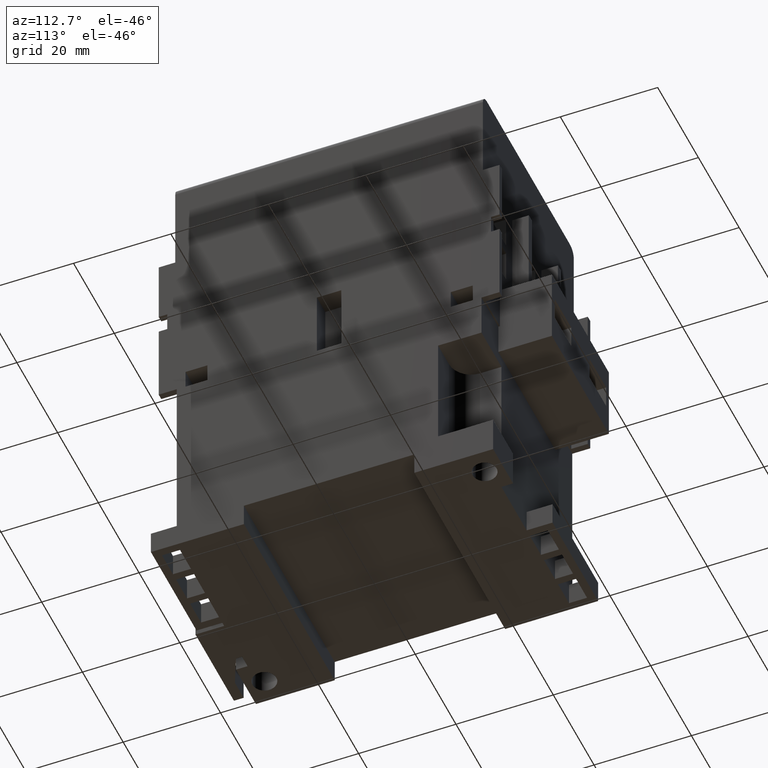
[diagram: clean part render]
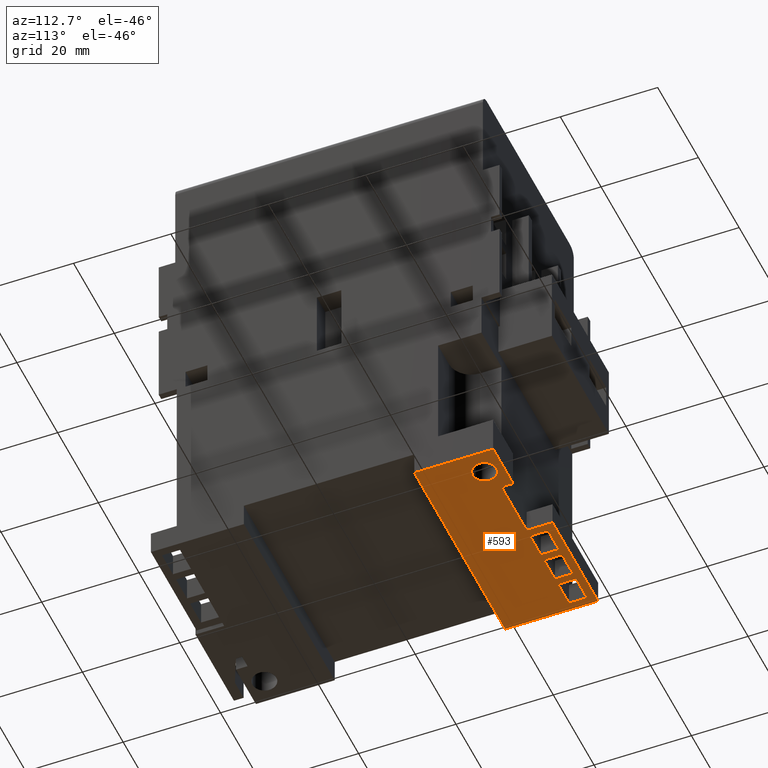
[diagram: same view with one face highlighted and labeled with its STEP entity id]
A machine part, auxiliary view. The second image highlights one B-rep face of the part: STEP entity #593.
In plain terms, the highlighted planar face has unit normal (0, 0, -1).
Its self-contained STEP definition (entity closure, byte-faithful):
#127=CIRCLE('',#7552,2.44999999999999);
#593=ADVANCED_FACE('',(#1354,#1355,#1356,#1357,#1358),#985,.T.);
#985=PLANE('',#7553);
#1354=FACE_BOUND('',#1492,.T.);
#1355=FACE_BOUND('',#1493,.T.);
#1356=FACE_BOUND('',#1494,.T.);
#1357=FACE_BOUND('',#1495,.T.);
#1358=FACE_BOUND('',#1496,.T.);
#1492=EDGE_LOOP('',(#2135,#2136,#2137,#2138,#2139,#2140,#2141,#2142));
#1493=EDGE_LOOP('',(#2143,#2144,#2145,#2146));
#1494=EDGE_LOOP('',(#2147,#2148,#2149,#2150));
#1495=EDGE_LOOP('',(#2151,#2152,#2153,#2154));
#1496=EDGE_LOOP('',(#2155));
#2135=ORIENTED_EDGE('',*,*,#4854,.T.);
#2136=ORIENTED_EDGE('',*,*,#4855,.T.);
#2137=ORIENTED_EDGE('',*,*,#4856,.T.);
#2138=ORIENTED_EDGE('',*,*,#4857,.T.);
#2139=ORIENTED_EDGE('',*,*,#4858,.T.);
#2140=ORIENTED_EDGE('',*,*,#4743,.F.);
#2141=ORIENTED_EDGE('',*,*,#4859,.F.);
#2142=ORIENTED_EDGE('',*,*,#4671,.T.);
#2143=ORIENTED_EDGE('',*,*,#4860,.F.);
#2144=ORIENTED_EDGE('',*,*,#4861,.F.);
#2145=ORIENTED_EDGE('',*,*,#4862,.F.);
#2146=ORIENTED_EDGE('',*,*,#4863,.F.);
#2147=ORIENTED_EDGE('',*,*,#4864,.F.);
#2148=ORIENTED_EDGE('',*,*,#4865,.F.);
#2149=ORIENTED_EDGE('',*,*,#4866,.F.);
#2150=ORIENTED_EDGE('',*,*,#4867,.F.);
#2151=ORIENTED_EDGE('',*,*,#4868,.F.);
#2152=ORIENTED_EDGE('',*,*,#4869,.F.);
#2153=ORIENTED_EDGE('',*,*,#4870,.F.);
#2154=ORIENTED_EDGE('',*,*,#4871,.F.);
#2155=ORIENTED_EDGE('',*,*,#4872,.T.);
#3979=VERTEX_POINT('',#9949);
#3980=VERTEX_POINT('',#9951);
#4048=VERTEX_POINT('',#10094);
#4049=VERTEX_POINT('',#10096);
#4143=VERTEX_POINT('',#10316);
#4144=VERTEX_POINT('',#10318);
#4145=VERTEX_POINT('',#10320);
#4146=VERTEX_POINT('',#10322);
#4147=VERTEX_POINT('',#10326);
#4148=VERTEX_POINT('',#10327);
#4149=VERTEX_POINT('',#10329);
#4150=VERTEX_POINT('',#10331);
#4151=VERTEX_POINT('',#10334);
#4152=VERTEX_POINT('',#10335);
#4153=VERTEX_POINT('',#10337);
#4154=VERTEX_POINT('',#10339);
#4155=VERTEX_POINT('',#10342);
#4156=VERTEX_POINT('',#10343);
#4157=VERTEX_POINT('',#10345);
#4158=VERTEX_POINT('',#10347);
#4159=VERTEX_POINT('',#10350);
#4671=EDGE_CURVE('',#3980,#3979,#5694,.T.);
#4743=EDGE_CURVE('',#4048,#4049,#5766,.T.);
#4854=EDGE_CURVE('',#3979,#4143,#5871,.T.);
#4855=EDGE_CURVE('',#4143,#4144,#5872,.T.);
#4856=EDGE_CURVE('',#4144,#4145,#5873,.T.);
#4857=EDGE_CURVE('',#4145,#4146,#5874,.T.);
#4858=EDGE_CURVE('',#4146,#4049,#5875,.T.);
#4859=EDGE_CURVE('',#3980,#4048,#5876,.T.);
#4860=EDGE_CURVE('',#4147,#4148,#5877,.T.);
#4861=EDGE_CURVE('',#4149,#4147,#5878,.T.);
#4862=EDGE_CURVE('',#4150,#4149,#5879,.T.);
#4863=EDGE_CURVE('',#4148,#4150,#5880,.T.);
#4864=EDGE_CURVE('',#4151,#4152,#5881,.T.);
#4865=EDGE_CURVE('',#4153,#4151,#5882,.T.);
#4866=EDGE_CURVE('',#4154,#4153,#5883,.T.);
#4867=EDGE_CURVE('',#4152,#4154,#5884,.T.);
#4868=EDGE_CURVE('',#4155,#4156,#5885,.T.);
#4869=EDGE_CURVE('',#4157,#4155,#5886,.T.);
#4870=EDGE_CURVE('',#4158,#4157,#5887,.T.);
#4871=EDGE_CURVE('',#4156,#4158,#5888,.T.);
#4872=EDGE_CURVE('',#4159,#4159,#127,.T.);
#5694=LINE('',#9950,#6613);
#5766=LINE('',#10095,#6685);
#5871=LINE('',#10315,#6790);
#5872=LINE('',#10317,#6791);
#5873=LINE('',#10319,#6792);
#5874=LINE('',#10321,#6793);
#5875=LINE('',#10323,#6794);
#5876=LINE('',#10324,#6795);
#5877=LINE('',#10325,#6796);
#5878=LINE('',#10328,#6797);
#5879=LINE('',#10330,#6798);
#5880=LINE('',#10332,#6799);
#5881=LINE('',#10333,#6800);
#5882=LINE('',#10336,#6801);
#5883=LINE('',#10338,#6802);
#5884=LINE('',#10340,#6803);
#5885=LINE('',#10341,#6804);
#5886=LINE('',#10344,#6805);
#5887=LINE('',#10346,#6806);
#5888=LINE('',#10348,#6807);
#6613=VECTOR('',#8031,1.);
#6685=VECTOR('',#8111,1.);
#6790=VECTOR('',#8258,1.);
#6791=VECTOR('',#8259,1.);
#6792=VECTOR('',#8260,1.);
#6793=VECTOR('',#8261,1.);
#6794=VECTOR('',#8262,1.);
#6795=VECTOR('',#8263,1.);
#6796=VECTOR('',#8264,1.);
#6797=VECTOR('',#8265,1.);
#6798=VECTOR('',#8266,1.);
#6799=VECTOR('',#8267,1.);
#6800=VECTOR('',#8268,1.);
#6801=VECTOR('',#8269,1.);
#6802=VECTOR('',#8270,1.);
#6803=VECTOR('',#8271,1.);
#6804=VECTOR('',#8272,1.);
#6805=VECTOR('',#8273,1.);
#6806=VECTOR('',#8274,1.);
#6807=VECTOR('',#8275,1.);
#7552=AXIS2_PLACEMENT_3D('',#10349,#8276,#8277);
#7553=AXIS2_PLACEMENT_3D('',#10351,#8278,#8279);
#8031=DIRECTION('',(0.,1.,1.81646437275058E-016));
#8111=DIRECTION('',(0.,1.,1.81646437275058E-016));
#8258=DIRECTION('',(1.,0.,0.));
#8259=DIRECTION('',(-2.12790326065711E-031,-1.,-1.81646437275058E-016));
#8260=DIRECTION('',(1.,0.,0.));
#8261=DIRECTION('',(0.,1.,0.));
#8262=DIRECTION('',(1.,7.0805039835788E-016,0.));
#8263=DIRECTION('',(1.,0.,0.));
#8264=DIRECTION('',(-1.,0.,0.));
#8265=DIRECTION('',(-2.12790326065711E-031,-1.,-1.81646437275058E-016));
#8266=DIRECTION('',(1.,0.,0.));
#8267=DIRECTION('',(2.12790326065711E-031,1.,1.81646437275058E-016));
#8268=DIRECTION('',(-1.,0.,0.));
#8269=DIRECTION('',(-2.12790326065711E-031,-1.,-1.81646437275058E-016));
#8270=DIRECTION('',(1.,0.,0.));
#8271=DIRECTION('',(2.12790326065711E-031,1.,1.81646437275058E-016));
#8272=DIRECTION('',(-1.,0.,0.));
#8273=DIRECTION('',(-2.12790326065711E-031,-1.,-1.81646437275058E-016));
#8274=DIRECTION('',(1.,0.,0.));
#8275=DIRECTION('',(2.12790326065711E-031,1.,1.81646437275058E-016));
#8276=DIRECTION('',(0.,-1.81646437275058E-016,1.));
#8277=DIRECTION('',(0.,1.,3.54025199178941E-016));
#8278=DIRECTION('',(0.,1.81646437275058E-016,-1.));
#8279=DIRECTION('',(0.,1.,1.81278603239576E-016));
#9949=CARTESIAN_POINT('',(-22.3,36.6,-4.99999999999999));
#9950=CARTESIAN_POINT('',(-22.3,17.5,-5.));
#9951=CARTESIAN_POINT('',(-22.3,17.5,-5.));
#10094=CARTESIAN_POINT('',(22.3,17.5,-5.));
#10095=CARTESIAN_POINT('',(22.3,17.5,-5.));
#10096=CARTESIAN_POINT('',(22.3,33.7,-5.));
#10315=CARTESIAN_POINT('',(-22.3,36.6,-4.99999999999999));
#10316=CARTESIAN_POINT('',(0.0999999999999935,36.6,-4.99999999999999));
#10317=CARTESIAN_POINT('',(0.0999999999999935,36.6,-4.99999999999999));
#10318=CARTESIAN_POINT('',(0.0999999999999935,31.3,-5.));
#10319=CARTESIAN_POINT('',(0.099999999999995,31.3,-5.));
#10320=CARTESIAN_POINT('',(12.5,31.3,-5.));
#10321=CARTESIAN_POINT('',(12.5,31.3,-5.));
#10322=CARTESIAN_POINT('',(12.5,33.7,-5.));
#10323=CARTESIAN_POINT('',(12.5,33.7,-5.));
#10324=CARTESIAN_POINT('',(-22.3,17.5,-5.));
#10325=CARTESIAN_POINT('',(-1.50000000000001,31.3,-5.));
#10326=CARTESIAN_POINT('',(-1.50000000000001,31.3,-5.));
#10327=CARTESIAN_POINT('',(-6.90000000000001,31.3,-5.));
#10328=CARTESIAN_POINT('',(-1.50000000000001,35.,-4.99999999999999));
#10329=CARTESIAN_POINT('',(-1.50000000000001,35.,-5.));
#10330=CARTESIAN_POINT('',(-6.90000000000001,35.,-4.99999999999999));
#10331=CARTESIAN_POINT('',(-6.90000000000001,35.,-4.99999999999999));
#10332=CARTESIAN_POINT('',(-6.90000000000001,31.3,-5.));
#10333=CARTESIAN_POINT('',(-8.40000000000001,31.3,-5.));
#10334=CARTESIAN_POINT('',(-8.40000000000001,31.3,-5.));
#10335=CARTESIAN_POINT('',(-13.8,31.3,-5.));
#10336=CARTESIAN_POINT('',(-8.40000000000001,35.,-4.99999999999999));
#10337=CARTESIAN_POINT('',(-8.40000000000001,35.,-5.));
#10338=CARTESIAN_POINT('',(-13.8,35.,-4.99999999999999));
#10339=CARTESIAN_POINT('',(-13.8,35.,-4.99999999999999));
#10340=CARTESIAN_POINT('',(-13.8,31.3,-5.));
#10341=CARTESIAN_POINT('',(-15.3,31.3,-5.));
#10342=CARTESIAN_POINT('',(-15.3,31.3,-5.));
#10343=CARTESIAN_POINT('',(-20.7,31.3,-5.));
#10344=CARTESIAN_POINT('',(-15.3,35.,-4.99999999999999));
#10345=CARTESIAN_POINT('',(-15.3,35.,-5.));
#10346=CARTESIAN_POINT('',(-20.7,35.,-4.99999999999999));
#10347=CARTESIAN_POINT('',(-20.7,35.,-4.99999999999999));
#10348=CARTESIAN_POINT('',(-20.7,31.3,-5.));
#10349=CARTESIAN_POINT('',(17.4,29.9,-5.));
#10350=CARTESIAN_POINT('',(17.4,32.35,-4.99999999999999));
#10351=CARTESIAN_POINT('',(-22.3,17.5,-5.));